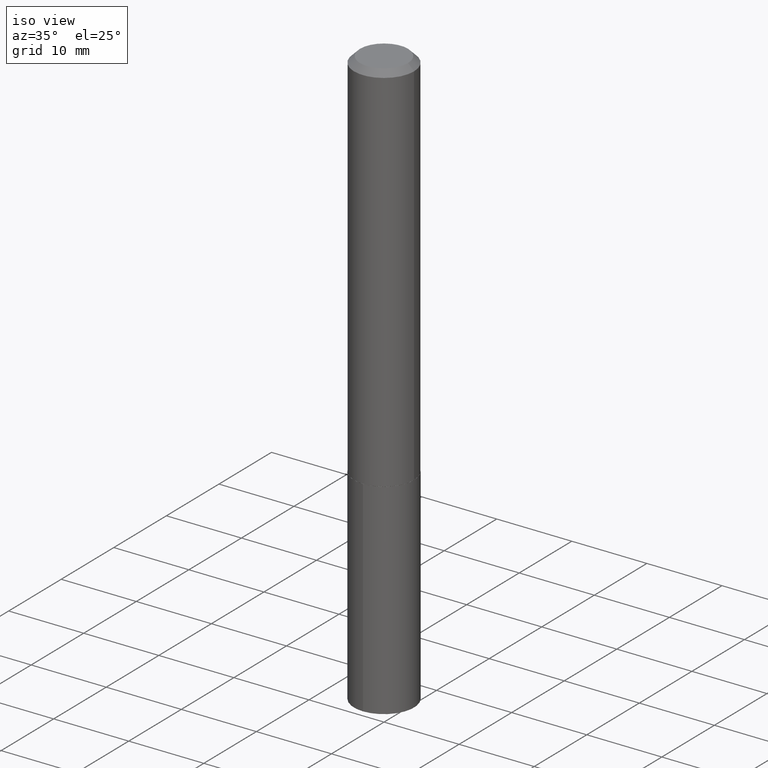
[diagram: clean part render]
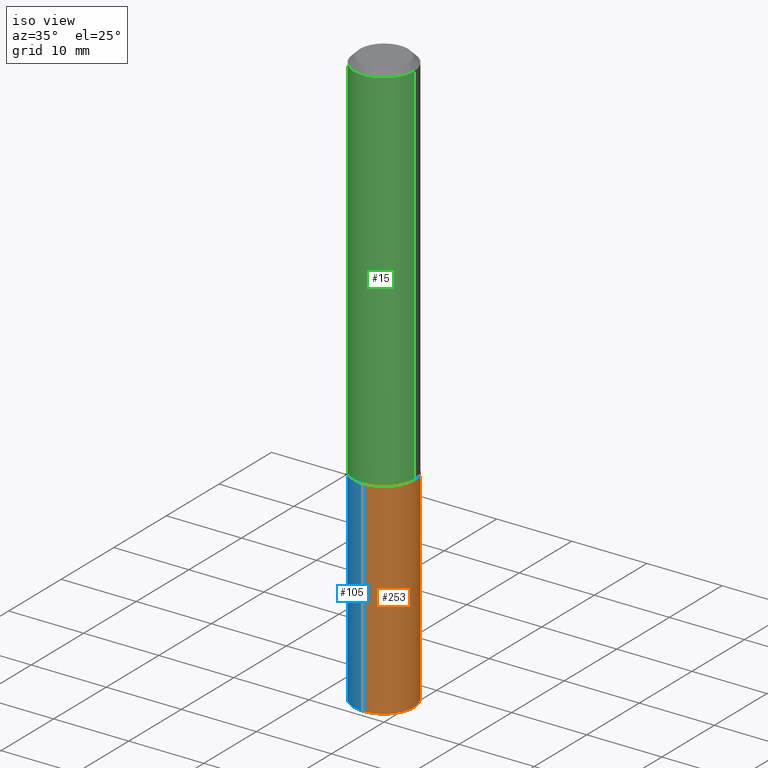
[diagram: same view with three faces highlighted in distinct colors, each labeled with its STEP entity id]
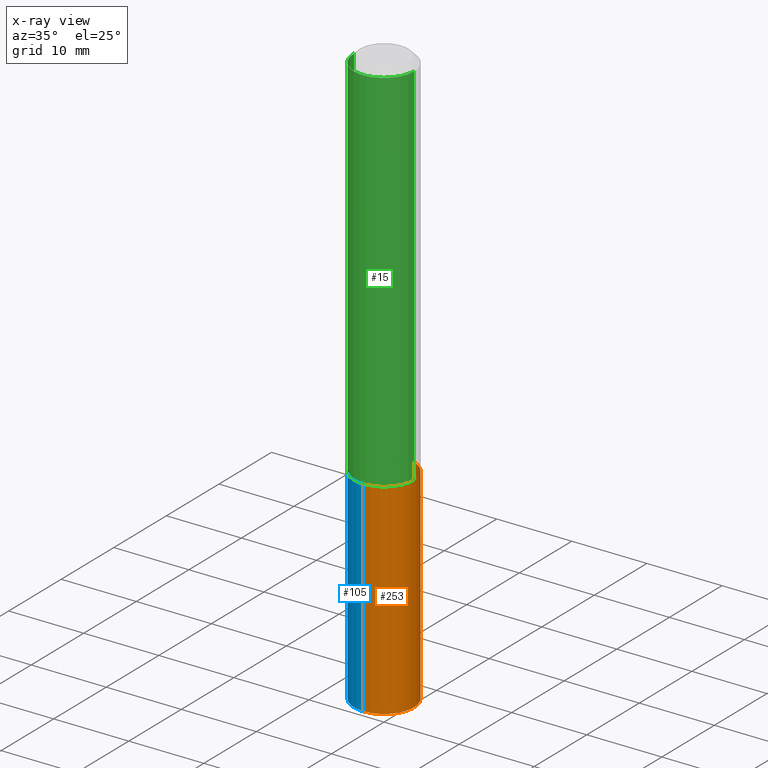
[diagram: x-ray of the same camera — body ghosted, the three highlighted faces saturated]
A machine part, iso view with three faces highlighted in distinct colors.
The next image is the same camera in x-ray (body ghosted, the three faces saturated) — at least one of them is partly hidden behind the body in this view.
Their STEP definitions:

[orange] entity #253 — the highlighted cylindrical surface (partial cylindrical patch) has radius 4.0005 mm, axis along (-0, 0, 1).
#18 = ORIENTED_EDGE ( 'NONE', *, *, #214, .T. ) ;
#38 = AXIS2_PLACEMENT_3D ( 'NONE', #303, #47, #94 ) ;
#47 = DIRECTION ( 'NONE',  ( -2.447474477797698207E-29, 3.488609102938218412E-15, 1.000000000000000000 ) ) ;
#58 = VECTOR ( 'NONE', #309, 39.37007874015748143 ) ;
#65 = CARTESIAN_POINT ( 'NONE',  ( 1.119104808822231954E-15, 0.1574999999999893707, -3.046565869430963858 ) ) ;
#70 = VERTEX_POINT ( 'NONE', #148 ) ;
#94 = DIRECTION ( 'NONE',  ( -6.982962677686264344E-15, -1.000000000000000000, 3.469013325287953293E-15 ) ) ;
#98 = ORIENTED_EDGE ( 'NONE', *, *, #219, .F. ) ;
#110 = EDGE_LOOP ( 'NONE', ( #18, #131, #98, #258 ) ) ;
#123 = EDGE_CURVE ( 'NONE', #225, #287, #270, .T. ) ;
#131 = ORIENTED_EDGE ( 'NONE', *, *, #123, .T. ) ;
#141 = VERTEX_POINT ( 'NONE', #320 ) ;
#148 = CARTESIAN_POINT ( 'NONE',  ( -1.099816621735538768E-15, -0.1575000000000068567, -1.968499999999999472 ) ) ;
#149 = CARTESIAN_POINT ( 'NONE',  ( 1.119104808822205527E-15, 0.1574999999999931177, -1.968500000000000583 ) ) ;
#164 = AXIS2_PLACEMENT_3D ( 'NONE', #178, #210, #244 ) ;
#173 = EDGE_CURVE ( 'NONE', #141, #70, #381, .T. ) ;
#175 = AXIS2_PLACEMENT_3D ( 'NONE', #368, #341, #335 ) ;
#178 = CARTESIAN_POINT ( 'NONE',  ( 4.813905344975441835E-29, -6.872981015512731707E-15, -1.968500000000000139 ) ) ;
#180 = CYLINDRICAL_SURFACE ( 'NONE', #38, 0.1575000000000000011 ) ;
#181 = CARTESIAN_POINT ( 'NONE',  ( 1.119104808822231954E-15, 0.1574999999999931177, -1.968500000000000583 ) ) ;
#210 = DIRECTION ( 'NONE',  ( -2.447474477797698207E-29, 3.488609102938218412E-15, 1.000000000000000000 ) ) ;
#214 = EDGE_CURVE ( 'NONE', #141, #225, #272, .T. ) ;
#219 = EDGE_CURVE ( 'NONE', #70, #287, #343, .T. ) ;
#225 = VERTEX_POINT ( 'NONE', #65 ) ;
#244 = DIRECTION ( 'NONE',  ( -6.982962677686264344E-15, -1.000000000000000000, 3.469013325287953293E-15 ) ) ;
#253 = ADVANCED_FACE ( 'NONE', ( #306 ), #180, .T. ) ;
#258 = ORIENTED_EDGE ( 'NONE', *, *, #173, .F. ) ;
#270 = LINE ( 'NONE', #149, #321 ) ;
#272 = CIRCLE ( 'NONE', #175, 0.1575000000000000011 ) ;
#278 = CARTESIAN_POINT ( 'NONE',  ( -1.099816621735538768E-15, -0.1575000000000068567, -1.968499999999999472 ) ) ;
#287 = VERTEX_POINT ( 'NONE', #181 ) ;
#303 = CARTESIAN_POINT ( 'NONE',  ( 4.813905344975441835E-29, -6.872981015512731707E-15, -1.968500000000000139 ) ) ;
#306 = FACE_OUTER_BOUND ( 'NONE', #110, .T. ) ;
#309 = DIRECTION ( 'NONE',  ( -2.447474477797697927E-29, 3.488609102938218017E-15, 1.000000000000000000 ) ) ;
#320 = CARTESIAN_POINT ( 'NONE',  ( -1.099816621735512341E-15, -0.1575000000000106037, -3.046565869430962525 ) ) ;
#321 = VECTOR ( 'NONE', #387, 39.37007874015748143 ) ;
#335 = DIRECTION ( 'NONE',  ( -6.982962677686264344E-15, -1.000000000000000000, 3.469013325287953293E-15 ) ) ;
#341 = DIRECTION ( 'NONE',  ( -2.447474477797698207E-29, 3.488609102938218412E-15, 1.000000000000000000 ) ) ;
#343 = CIRCLE ( 'NONE', #164, 0.1575000000000000011 ) ;
#368 = CARTESIAN_POINT ( 'NONE',  ( 7.452444045792510056E-29, -1.063393142117659408E-14, -3.046565869430963414 ) ) ;
#381 = LINE ( 'NONE', #278, #58 ) ;
#387 = DIRECTION ( 'NONE',  ( -2.447474477797697927E-29, 3.488609102938218017E-15, 1.000000000000000000 ) ) ;

[blue] entity #105 — the highlighted cylindrical surface (partial cylindrical patch) has radius 4.0005 mm, axis along (-0, 0, 1).
#24 = EDGE_LOOP ( 'NONE', ( #55, #265, #167, #256 ) ) ;
#25 = AXIS2_PLACEMENT_3D ( 'NONE', #157, #53, #136 ) ;
#53 = DIRECTION ( 'NONE',  ( -2.447474477797698207E-29, 3.488609102938218412E-15, 1.000000000000000000 ) ) ;
#55 = ORIENTED_EDGE ( 'NONE', *, *, #123, .F. ) ;
#58 = VECTOR ( 'NONE', #309, 39.37007874015748143 ) ;
#65 = CARTESIAN_POINT ( 'NONE',  ( 1.119104808822231954E-15, 0.1574999999999893707, -3.046565869430963858 ) ) ;
#70 = VERTEX_POINT ( 'NONE', #148 ) ;
#102 = CARTESIAN_POINT ( 'NONE',  ( 4.813905344975441835E-29, -6.872981015512731707E-15, -1.968500000000000139 ) ) ;
#105 = ADVANCED_FACE ( 'NONE', ( #360 ), #267, .T. ) ;
#114 = DIRECTION ( 'NONE',  ( -6.982962677686264344E-15, -1.000000000000000000, 3.469013325287953293E-15 ) ) ;
#123 = EDGE_CURVE ( 'NONE', #225, #287, #270, .T. ) ;
#136 = DIRECTION ( 'NONE',  ( -6.982962677686264344E-15, -1.000000000000000000, 3.469013325287953293E-15 ) ) ;
#141 = VERTEX_POINT ( 'NONE', #320 ) ;
#148 = CARTESIAN_POINT ( 'NONE',  ( -1.099816621735538768E-15, -0.1575000000000068567, -1.968499999999999472 ) ) ;
#149 = CARTESIAN_POINT ( 'NONE',  ( 1.119104808822205527E-15, 0.1574999999999931177, -1.968500000000000583 ) ) ;
#152 = AXIS2_PLACEMENT_3D ( 'NONE', #102, #224, #313 ) ;
#157 = CARTESIAN_POINT ( 'NONE',  ( 7.452444045792510056E-29, -1.063393142117659408E-14, -3.046565869430963414 ) ) ;
#167 = ORIENTED_EDGE ( 'NONE', *, *, #173, .T. ) ;
#173 = EDGE_CURVE ( 'NONE', #141, #70, #381, .T. ) ;
#181 = CARTESIAN_POINT ( 'NONE',  ( 1.119104808822231954E-15, 0.1574999999999931177, -1.968500000000000583 ) ) ;
#208 = CARTESIAN_POINT ( 'NONE',  ( 4.813905344975441835E-29, -6.872981015512731707E-15, -1.968500000000000139 ) ) ;
#224 = DIRECTION ( 'NONE',  ( -2.447474477797698207E-29, 3.488609102938218412E-15, 1.000000000000000000 ) ) ;
#225 = VERTEX_POINT ( 'NONE', #65 ) ;
#236 = DIRECTION ( 'NONE',  ( -2.447474477797698207E-29, 3.488609102938218412E-15, 1.000000000000000000 ) ) ;
#256 = ORIENTED_EDGE ( 'NONE', *, *, #386, .F. ) ;
#265 = ORIENTED_EDGE ( 'NONE', *, *, #333, .T. ) ;
#267 = CYLINDRICAL_SURFACE ( 'NONE', #371, 0.1575000000000000011 ) ;
#270 = LINE ( 'NONE', #149, #321 ) ;
#278 = CARTESIAN_POINT ( 'NONE',  ( -1.099816621735538768E-15, -0.1575000000000068567, -1.968499999999999472 ) ) ;
#287 = VERTEX_POINT ( 'NONE', #181 ) ;
#309 = DIRECTION ( 'NONE',  ( -2.447474477797697927E-29, 3.488609102938218017E-15, 1.000000000000000000 ) ) ;
#311 = CIRCLE ( 'NONE', #25, 0.1575000000000000011 ) ;
#313 = DIRECTION ( 'NONE',  ( -6.982962677686264344E-15, -1.000000000000000000, 3.469013325287953293E-15 ) ) ;
#320 = CARTESIAN_POINT ( 'NONE',  ( -1.099816621735512341E-15, -0.1575000000000106037, -3.046565869430962525 ) ) ;
#321 = VECTOR ( 'NONE', #387, 39.37007874015748143 ) ;
#323 = CIRCLE ( 'NONE', #152, 0.1575000000000000011 ) ;
#333 = EDGE_CURVE ( 'NONE', #225, #141, #311, .T. ) ;
#360 = FACE_OUTER_BOUND ( 'NONE', #24, .T. ) ;
#371 = AXIS2_PLACEMENT_3D ( 'NONE', #208, #236, #114 ) ;
#381 = LINE ( 'NONE', #278, #58 ) ;
#386 = EDGE_CURVE ( 'NONE', #287, #70, #323, .T. ) ;
#387 = DIRECTION ( 'NONE',  ( -2.447474477797697927E-29, 3.488609102938218017E-15, 1.000000000000000000 ) ) ;

[green] entity #15 — the highlighted cylindrical surface (partial cylindrical patch) has radius 4.0005 mm, axis along (-0, 0, 1).
#10 = DIRECTION ( 'NONE',  ( 1.000000000000000000, -6.982962677686268288E-15, 0.000000000000000000 ) ) ;
#15 = ADVANCED_FACE ( 'NONE', ( #385 ), #117, .T. ) ;
#31 = CARTESIAN_POINT ( 'NONE',  ( 0.1575000000000001399, -1.099816621735587875E-15, 7.679978421878605039E-30 ) ) ;
#43 = EDGE_LOOP ( 'NONE', ( #229, #353, #277, #169 ) ) ;
#52 = VERTEX_POINT ( 'NONE', #234 ) ;
#62 = DIRECTION ( 'NONE',  ( -2.445468806185136597E-29, 3.491481338843145583E-15, 1.000000000000000000 ) ) ;
#72 = DIRECTION ( 'NONE',  ( -2.445468806185136597E-29, 3.491481338843145583E-15, 1.000000000000000000 ) ) ;
#76 = EDGE_CURVE ( 'NONE', #318, #52, #297, .T. ) ;
#77 = CARTESIAN_POINT ( 'NONE',  ( -0.1575000000000002787, -5.752130466021151023E-15, -1.968000000000000194 ) ) ;
#90 = CARTESIAN_POINT ( 'NONE',  ( 0.000000000000000000, 0.000000000000000000, 0.000000000000000000 ) ) ;
#97 = CARTESIAN_POINT ( 'NONE',  ( -0.1575000000000000011, -2.371067224518920471E-15, -0.03125000000000021511 ) ) ;
#101 = CIRCLE ( 'NONE', #271, 0.1575000000000002787 ) ;
#117 = CYLINDRICAL_SURFACE ( 'NONE', #247, 0.1575000000000001399 ) ;
#120 = DIRECTION ( 'NONE',  ( 1.000000000000000000, -6.982962677686265922E-15, 4.876176775795935232E-29 ) ) ;
#121 = DIRECTION ( 'NONE',  ( -2.445468806185136877E-29, 3.491481338843145188E-15, 1.000000000000000000 ) ) ;
#126 = CARTESIAN_POINT ( 'NONE',  ( -0.1575000000000001399, 1.119104808822158787E-15, -7.747322767151482590E-30 ) ) ;
#151 = VECTOR ( 'NONE', #121, 39.37007874015748143 ) ;
#161 = DIRECTION ( 'NONE',  ( -2.445468806185136597E-29, 3.491481338843145583E-15, 1.000000000000000000 ) ) ;
#169 = ORIENTED_EDGE ( 'NONE', *, *, #179, .F. ) ;
#179 = EDGE_CURVE ( 'NONE', #328, #52, #310, .T. ) ;
#215 = CARTESIAN_POINT ( 'NONE',  ( 7.642090019328603538E-31, -1.091087918388490390E-16, -0.03125000000000021511 ) ) ;
#229 = ORIENTED_EDGE ( 'NONE', *, *, #327, .F. ) ;
#234 = CARTESIAN_POINT ( 'NONE',  ( 0.1575000000000000011, -1.208925413574435989E-15, -0.03125000000000021511 ) ) ;
#235 = EDGE_CURVE ( 'NONE', #379, #318, #101, .T. ) ;
#246 = CARTESIAN_POINT ( 'NONE',  ( 4.812682610572349594E-29, -6.871235274843310993E-15, -1.968000000000000194 ) ) ;
#247 = AXIS2_PLACEMENT_3D ( 'NONE', #90, #62, #120 ) ;
#271 = AXIS2_PLACEMENT_3D ( 'NONE', #246, #72, #10 ) ;
#275 = LINE ( 'NONE', #126, #279 ) ;
#277 = ORIENTED_EDGE ( 'NONE', *, *, #76, .T. ) ;
#279 = VECTOR ( 'NONE', #366, 39.37007874015748143 ) ;
#297 = LINE ( 'NONE', #31, #151 ) ;
#310 = CIRCLE ( 'NONE', #355, 0.1575000000000000011 ) ;
#318 = VERTEX_POINT ( 'NONE', #364 ) ;
#327 = EDGE_CURVE ( 'NONE', #379, #328, #275, .T. ) ;
#328 = VERTEX_POINT ( 'NONE', #97 ) ;
#339 = DIRECTION ( 'NONE',  ( 1.000000000000000000, -6.982962677686265922E-15, 0.000000000000000000 ) ) ;
#353 = ORIENTED_EDGE ( 'NONE', *, *, #235, .T. ) ;
#355 = AXIS2_PLACEMENT_3D ( 'NONE', #215, #161, #339 ) ;
#364 = CARTESIAN_POINT ( 'NONE',  ( 0.1575000000000002787, -7.971051896578899262E-15, -1.968000000000000194 ) ) ;
#366 = DIRECTION ( 'NONE',  ( -2.445468806185136877E-29, 3.491481338843145188E-15, 1.000000000000000000 ) ) ;
#379 = VERTEX_POINT ( 'NONE', #77 ) ;
#385 = FACE_OUTER_BOUND ( 'NONE', #43, .T. ) ;